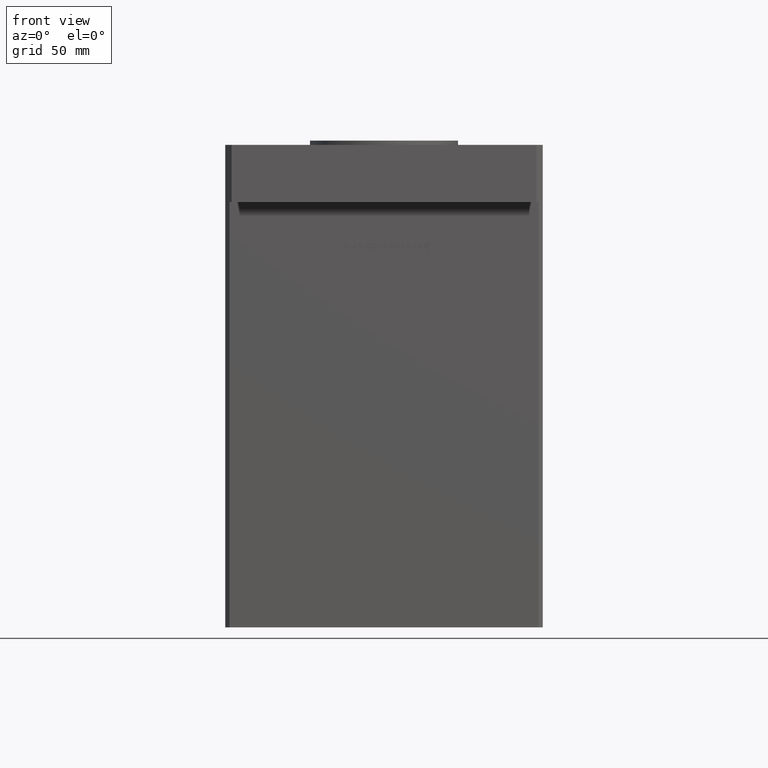
[diagram: clean part render]
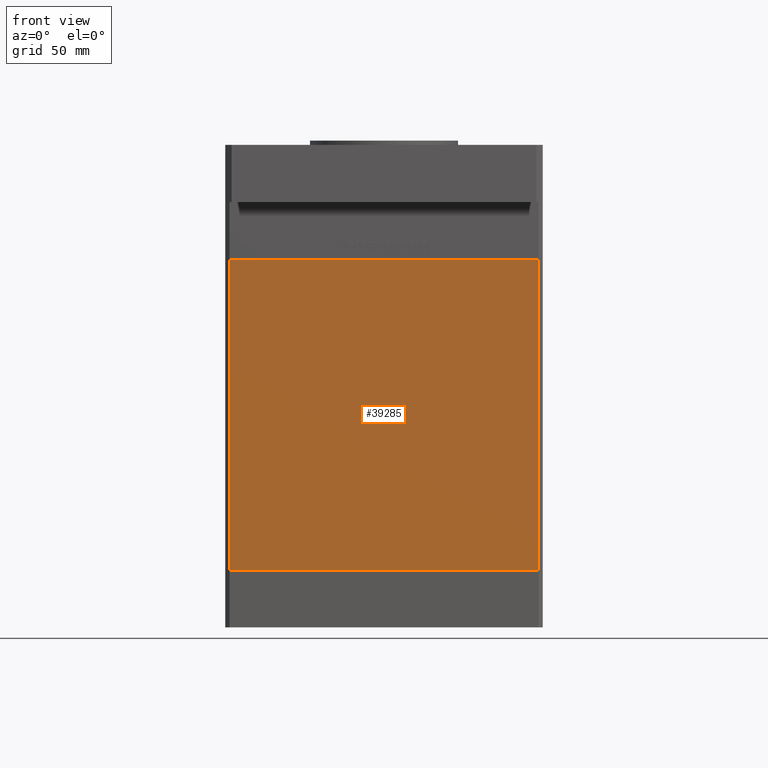
[diagram: same view with one face highlighted and labeled with its STEP entity id]
A machine part, front view. The second image highlights one B-rep face of the part: STEP entity #39285.
In plain terms, the highlighted planar face has unit normal (0, 1, 0).
Its self-contained STEP definition (entity closure, byte-faithful):
#2045 = AXIS2_PLACEMENT_3D ( 'NONE', #30143, #30933, #13459 ) ;
#3863 = EDGE_CURVE ( 'NONE', #4635, #37459, #25539, .T. ) ;
#4635 = VERTEX_POINT ( 'NONE', #17613 ) ;
#4695 = CARTESIAN_POINT ( 'NONE',  ( 72.99999999999998579, -62.50000000000000000, 0.000000000000000000 ) ) ;
#6011 = VECTOR ( 'NONE', #15978, 1000.000000000000000 ) ;
#7666 = VECTOR ( 'NONE', #21223, 1000.000000000000000 ) ;
#8566 = DIRECTION ( 'NONE',  ( 1.000000000000000000, 0.000000000000000000, 0.000000000000000000 ) ) ;
#10695 = EDGE_CURVE ( 'NONE', #12657, #37459, #48817, .T. ) ;
#12495 = CARTESIAN_POINT ( 'NONE',  ( -72.99999999999998579, -62.50000000000000000, 147.0000000000000000 ) ) ;
#12657 = VERTEX_POINT ( 'NONE', #12975 ) ;
#12975 = CARTESIAN_POINT ( 'NONE',  ( 72.99999999999998579, -62.50000000000000000, 147.0000000000000000 ) ) ;
#13459 = DIRECTION ( 'NONE',  ( 0.000000000000000000, -0.000000000000000000, 1.000000000000000000 ) ) ;
#14198 = DIRECTION ( 'NONE',  ( -0.000000000000000000, -0.000000000000000000, -1.000000000000000000 ) ) ;
#15978 = DIRECTION ( 'NONE',  ( -0.000000000000000000, -0.000000000000000000, -1.000000000000000000 ) ) ;
#17613 = CARTESIAN_POINT ( 'NONE',  ( -72.99999999999998579, -62.50000000000000000, 0.000000000000000000 ) ) ;
#21223 = DIRECTION ( 'NONE',  ( 1.000000000000000000, 0.000000000000000000, 0.000000000000000000 ) ) ;
#21481 = CARTESIAN_POINT ( 'NONE',  ( -72.99999999999998579, -62.50000000000000000, 147.0000000000000000 ) ) ;
#23346 = EDGE_CURVE ( 'NONE', #51699, #4635, #42463, .T. ) ;
#24048 = CARTESIAN_POINT ( 'NONE',  ( 72.99999999999998579, -62.50000000000000000, 147.0000000000000000 ) ) ;
#24931 = ORIENTED_EDGE ( 'NONE', *, *, #10695, .F. ) ;
#25539 = LINE ( 'NONE', #41157, #7666 ) ;
#25594 = EDGE_LOOP ( 'NONE', ( #28721, #24931, #31284, #48893 ) ) ;
#26109 = FACE_OUTER_BOUND ( 'NONE', #25594, .T. ) ;
#28721 = ORIENTED_EDGE ( 'NONE', *, *, #3863, .T. ) ;
#30143 = CARTESIAN_POINT ( 'NONE',  ( -72.99999999999998579, -62.50000000000000000, 147.0000000000000000 ) ) ;
#30933 = DIRECTION ( 'NONE',  ( 0.000000000000000000, 1.000000000000000000, 0.000000000000000000 ) ) ;
#31284 = ORIENTED_EDGE ( 'NONE', *, *, #50050, .F. ) ;
#34378 = CARTESIAN_POINT ( 'NONE',  ( -72.99999999999998579, -62.50000000000000000, 147.0000000000000000 ) ) ;
#36735 = VECTOR ( 'NONE', #8566, 1000.000000000000000 ) ;
#37459 = VERTEX_POINT ( 'NONE', #4695 ) ;
#39285 = ADVANCED_FACE ( 'NONE', ( #26109 ), #47086, .F. ) ;
#41157 = CARTESIAN_POINT ( 'NONE',  ( -72.99999999999998579, -62.50000000000000000, 0.000000000000000000 ) ) ;
#42463 = LINE ( 'NONE', #34378, #43330 ) ;
#43330 = VECTOR ( 'NONE', #14198, 1000.000000000000000 ) ;
#47086 = PLANE ( 'NONE',  #2045 ) ;
#48817 = LINE ( 'NONE', #24048, #6011 ) ;
#48893 = ORIENTED_EDGE ( 'NONE', *, *, #23346, .T. ) ;
#49764 = LINE ( 'NONE', #21481, #36735 ) ;
#50050 = EDGE_CURVE ( 'NONE', #51699, #12657, #49764, .T. ) ;
#51699 = VERTEX_POINT ( 'NONE', #12495 ) ;